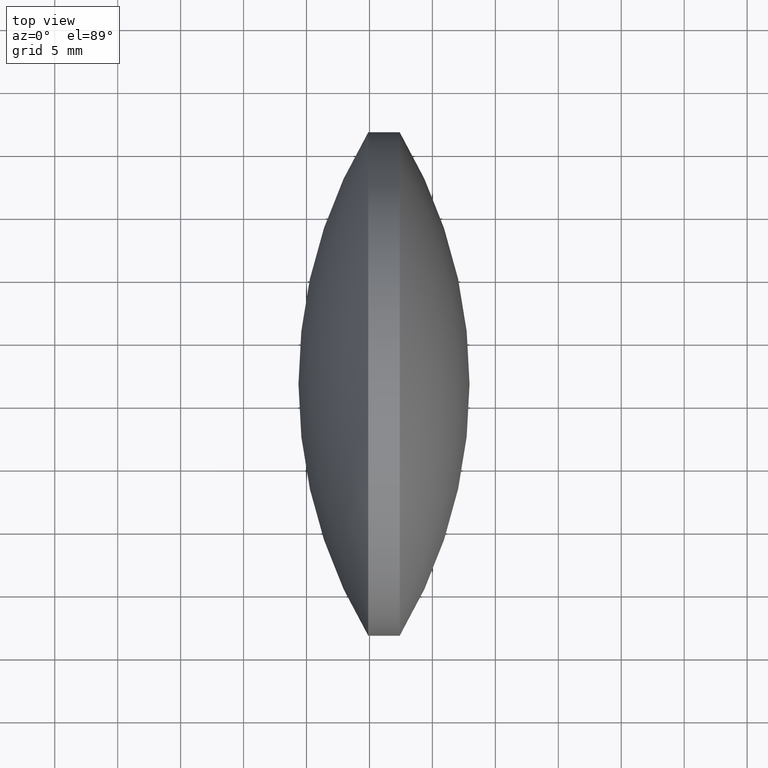
[diagram: clean part render]
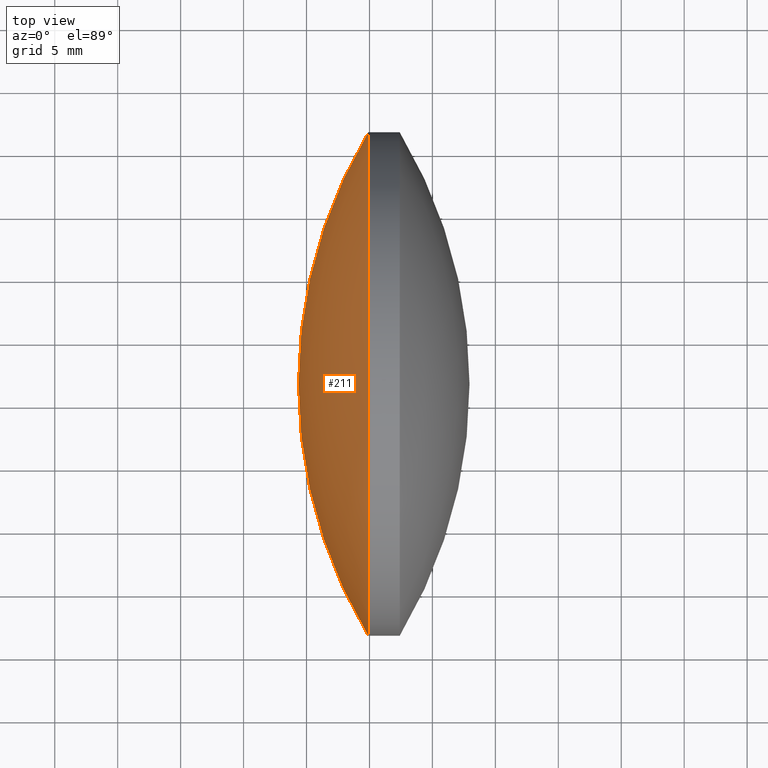
[diagram: same view with one face highlighted and labeled with its STEP entity id]
A machine part, top view. The second image highlights one B-rep face of the part: STEP entity #211.
In plain terms, the highlighted spherical surface has radius 38.841 mm.
Its self-contained STEP definition (entity closure, byte-faithful):
#1 = CIRCLE ( 'NONE', #292, 19.99999999999994700 ) ;
#12 = CIRCLE ( 'NONE', #266, 38.84103020739382100 ) ;
#35 = CIRCLE ( 'NONE', #261, 38.84103020739382100 ) ;
#36 = EDGE_CURVE ( 'NONE', #283, #236, #1, .T. ) ;
#46 = CARTESIAN_POINT ( 'NONE',  ( 134.9046358656097800, 56.56080791052689700, -2.449293598294701800E-015 ) ) ;
#58 = ORIENTED_EDGE ( 'NONE', *, *, #36, .T. ) ;
#61 = AXIS2_PLACEMENT_3D ( 'NONE', #96, #166, #71 ) ;
#71 = DIRECTION ( 'NONE',  ( -1.429188436425423700E-015, 1.000000000000000000, 0.0000000000000000000 ) ) ;
#76 = CARTESIAN_POINT ( 'NONE',  ( 168.2006660730035600, 76.56080791052691800, 0.0000000000000000000 ) ) ;
#96 = CARTESIAN_POINT ( 'NONE',  ( 168.2006660730035600, 76.56080791052691800, 0.0000000000000000000 ) ) ;
#99 = SPHERICAL_SURFACE ( 'NONE', #61, 38.84103020739382100 ) ;
#101 = DIRECTION ( 'NONE',  ( 1.000000000000000000, 0.0000000000000000000, 0.0000000000000000000 ) ) ;
#113 = EDGE_LOOP ( 'NONE', ( #272, #58, #179 ) ) ;
#116 = CARTESIAN_POINT ( 'NONE',  ( 134.9046358656097500, 76.56080791052686200, 0.0000000000000000000 ) ) ;
#124 = DIRECTION ( 'NONE',  ( -2.121372077364490100E-031, 1.224646799147353200E-016, -1.000000000000000000 ) ) ;
#127 = CARTESIAN_POINT ( 'NONE',  ( 134.9046358656097200, 96.56080791052681900, 0.0000000000000000000 ) ) ;
#163 = CARTESIAN_POINT ( 'NONE',  ( 168.2006660730035600, 76.56080791052691800, 0.0000000000000000000 ) ) ;
#166 = DIRECTION ( 'NONE',  ( -0.0000000000000000000, 0.0000000000000000000, -1.000000000000000000 ) ) ;
#179 = ORIENTED_EDGE ( 'NONE', *, *, #287, .T. ) ;
#211 = ADVANCED_FACE ( 'NONE', ( #218 ), #99, .T. ) ;
#218 = FACE_OUTER_BOUND ( 'NONE', #113, .T. ) ;
#234 = DIRECTION ( 'NONE',  ( -0.0000000000000000000, 0.0000000000000000000, 1.000000000000000000 ) ) ;
#236 = VERTEX_POINT ( 'NONE', #127 ) ;
#254 = EDGE_CURVE ( 'NONE', #283, #286, #35, .T. ) ;
#261 = AXIS2_PLACEMENT_3D ( 'NONE', #163, #124, #275 ) ;
#264 = DIRECTION ( 'NONE',  ( -1.000000000000000000, -1.732231757631238700E-015, -0.0000000000000000000 ) ) ;
#266 = AXIS2_PLACEMENT_3D ( 'NONE', #76, #234, #101 ) ;
#272 = ORIENTED_EDGE ( 'NONE', *, *, #254, .F. ) ;
#275 = DIRECTION ( 'NONE',  ( 0.0000000000000000000, 1.000000000000000000, 1.224646799147353200E-016 ) ) ;
#283 = VERTEX_POINT ( 'NONE', #46 ) ;
#286 = VERTEX_POINT ( 'NONE', #301 ) ;
#287 = EDGE_CURVE ( 'NONE', #236, #286, #12, .T. ) ;
#292 = AXIS2_PLACEMENT_3D ( 'NONE', #116, #264, #293 ) ;
#293 = DIRECTION ( 'NONE',  ( 1.387778780781449400E-015, -1.000000000000000000, 0.0000000000000000000 ) ) ;
#301 = CARTESIAN_POINT ( 'NONE',  ( 129.3596358656097300, 76.56080791052684700, 0.0000000000000000000 ) ) ;